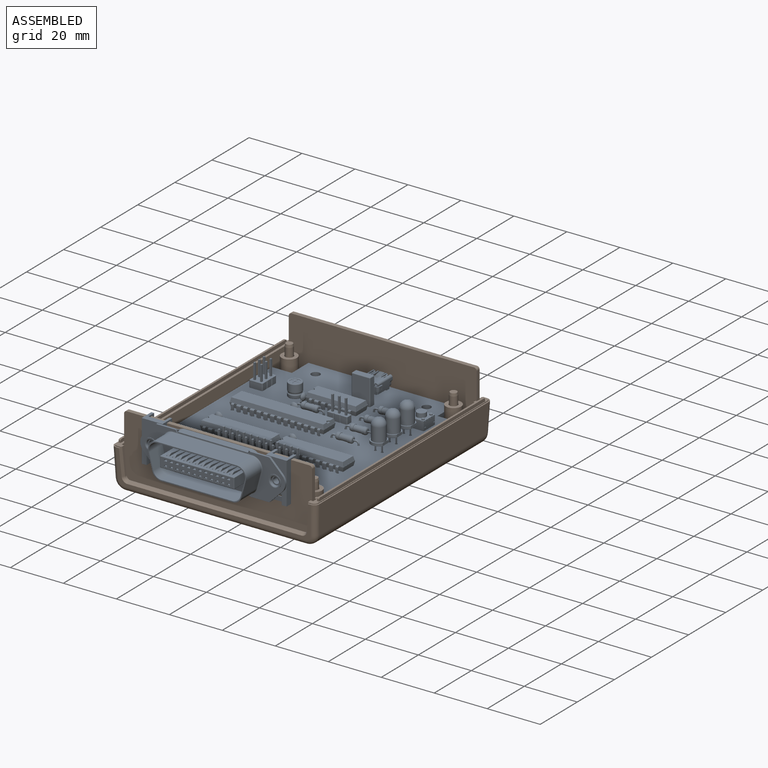
[diagram: assembled view]
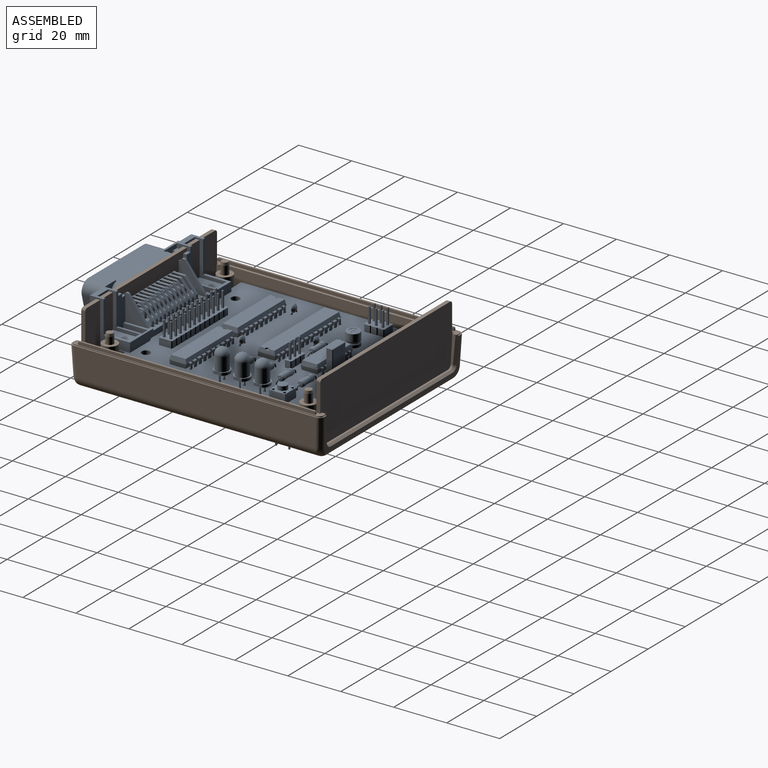
[diagram: assembled view, second angle]
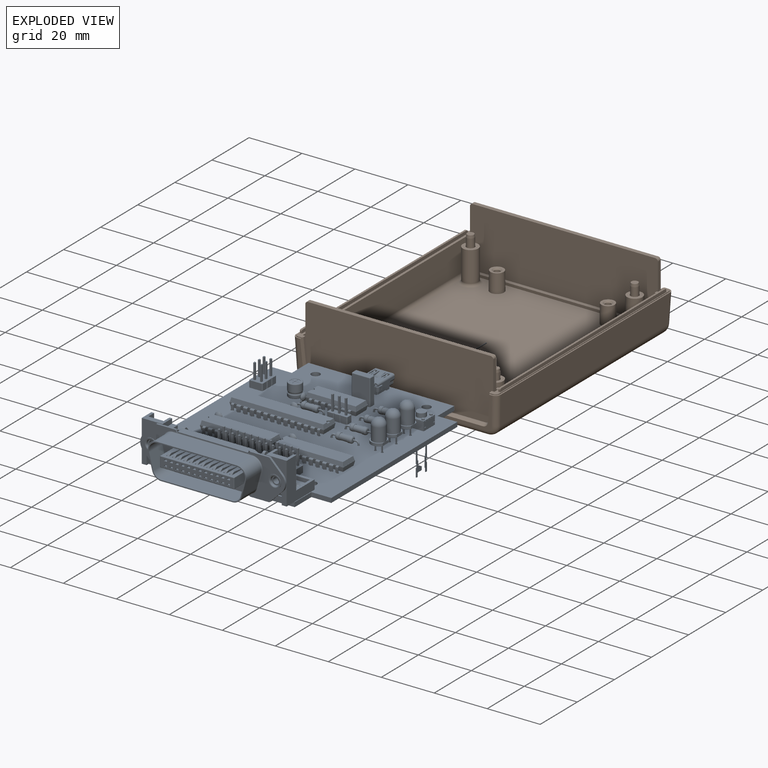
[diagram: exploded view]
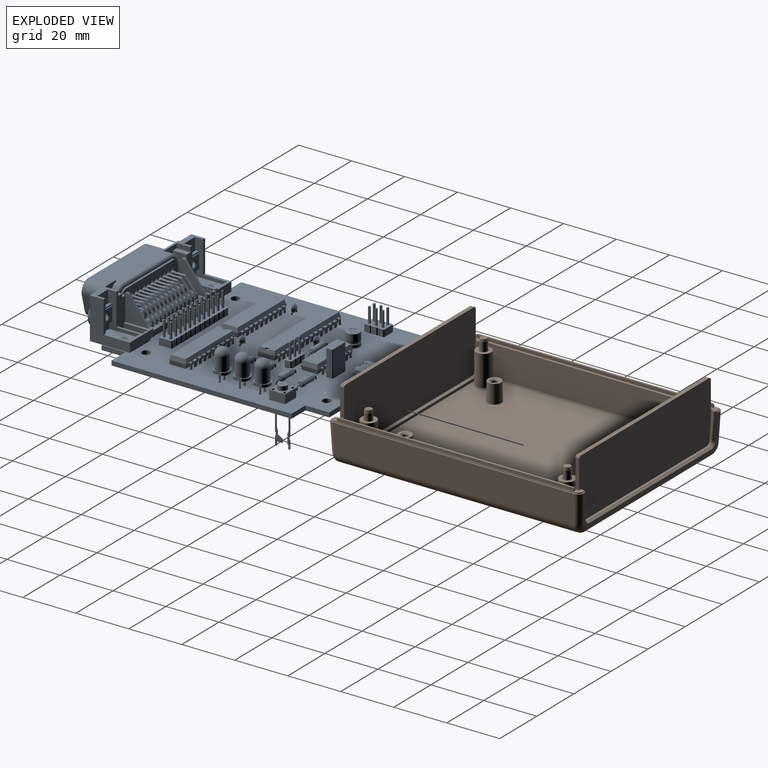
[diagram: exploded view, second angle]
FCSTD DOCUMENT  (FreeCAD 0.19R24267 +99 (Git))
Label: AVR488
License: All rights reserved
LicenseURL: http://en.wikipedia.org/wiki/All_rights_reserved
objects: Part::Feature×24, App::Link×10, App::Part×5, PartDesign::CoordinateSystem×1, Sketcher::SketchObject×1
note: 26 computed .brp shape members not serialized (recipe doc carries the construction recipe); baked Part::Feature solids carry a one-line shape summary decoded from their .brp

FEATURE [Part::Feature] Part__Feature  label="1593BB BOTTOM"
  shape: bbox 77.29 x 95.29 x 16.21 mm, 144 faces (baked)
FEATURE [Part::Feature] Part__Feature001  label="1593BB TOP"
  Placement = pos=(0,0,30) rot=(0,1,0;3.14159rad)
  shape: bbox 77.32 x 95.32 x 15.04 mm, 109 faces (baked)
FEATURE [Part::Feature] Part__Feature002  label="1593BB End Panel"
  Placement = pos=(0,-44.3754,14.5) rot=(-1,0,0;1.5708rad)
  shape: bbox 71 x 1.524 x 24.3 mm, 10 faces (baked)
FEATURE [Part::Feature] Part__Feature003  label="1593BB End Panel001"
  Placement = pos=(0,44.3754,14) rot=(0,0.707107,0.707107;3.14159rad)
  shape: bbox 71 x 1.524 x 24.3 mm, 10 faces (baked)
FEATURE [Part::Feature] Part__Feature005  label="SC549 (screw #4X 3_4' OH)"
  Placement = pos=(-31,-37.5,2.49631) rot=(-1,0,0;1.5708rad)
  shape: bbox 5.525 x 5.525 x 18.81 mm, 28 faces (baked)
FEATURE [Part::Feature] Part__Feature006  label="SC549 (screw #4X 3_4' OH)001"
  Placement = pos=(31,-37.5,1.89631) rot=(-1,0,0;1.5708rad)
  shape: bbox 5.525 x 5.525 x 18.81 mm, 28 faces (baked)
FEATURE [Part::Feature] Part__Feature007  label="SC549 (screw #4X 3_4' OH)002"
  Placement = pos=(31,37.5,2.49631) rot=(-1,0,0;1.5708rad)
  shape: bbox 5.525 x 5.525 x 18.81 mm, 28 faces (baked)
FEATURE [Part::Feature] Part__Feature008  label="SC549 (screw #4X 3_4' OH)003"
  Placement = pos=(-31,37.5,2.49631) rot=(-1,0,0;1.5708rad)
  shape: bbox 5.525 x 5.525 x 18.81 mm, 28 faces (baked)
FEATURE [PartDesign::CoordinateSystem] Local_CS_4d56
  AttacherType = Attacher::AttachEngine3D
FEATURE [Part::Feature] Pcb_4d56
  Placement = pos=(-139.7,106.68,0) rot=(0,0,1;0rad)
  shape: bbox 86 x 70 x 1.69 mm, 206 faces (baked)
FEATURE [Sketcher::SketchObject] PCB_Sketch_4d56
  FullyConstrained = false
  sketch-geometry (12):
    g0: LineSegment StartX=42.8 StartY=29.18 StartZ=0 EndX=42.8 EndY=21.68 EndZ=0
    g1: LineSegment StartX=42.8 StartY=21.68 StartZ=0 EndX=51.8 EndY=21.68 EndZ=0
    g2: LineSegment StartX=51.8 StartY=21.68 StartZ=0 EndX=51.8 EndY=-33.32 EndZ=0
    g3: LineSegment StartX=51.8 StartY=-33.32 StartZ=0 EndX=42.8 EndY=-33.32 EndZ=0
    g4: LineSegment StartX=42.8 StartY=-33.32 StartZ=0 EndX=42.8 EndY=-40.82 EndZ=0
    g5: LineSegment StartX=42.8 StartY=-40.82 StartZ=0 EndX=-25.2 EndY=-40.82 EndZ=0
    g6: LineSegment StartX=-25.2 StartY=-40.82 StartZ=0 EndX=-25.2 EndY=-33.32 EndZ=0
    g7: LineSegment StartX=-25.2 StartY=-33.32 StartZ=0 EndX=-34.2 EndY=-33.32 EndZ=0
    g8: LineSegment StartX=-34.2 StartY=-33.32 StartZ=0 EndX=-34.2 EndY=21.68 EndZ=0
    g9: LineSegment StartX=-34.2 StartY=21.68 StartZ=0 EndX=-25.2 EndY=21.68 EndZ=0
    g10: LineSegment StartX=-25.2 StartY=21.68 StartZ=0 EndX=-25.2 EndY=29.18 EndZ=0
    g11: LineSegment StartX=-25.2 StartY=29.18 StartZ=0 EndX=42.8 EndY=29.18 EndZ=0
  constraints (12):
    c: Coincident(g7,g8)
    c: Coincident(g8,g9)
    c: Coincident(g5,g6)
    c: Coincident(g6,g7)
    c: Coincident(g9,g10)
    c: Coincident(g10,g11)
    c: Coincident(g4,g5)
    c: Coincident(g3,g4)
    c: Coincident(g0,g1)
    c: Coincident(g0,g11)
    c: Coincident(g2,g3)
    c: Coincident(g1,g2)
FEATURE [App::Part] Board_Geoms_4d56
  Group = -> [Local_CS_4d56,Pcb_4d56,PCB_Sketch_4d56]
  Origin = -> Origin
FEATURE [Part::Feature] Shape  label="U1_DIP-14_W7.62mm_07c7e3d0463e"
  Placement = pos=(-8.89,-15.24,0) rot=(0,0,1;3.14159rad)
  shape: bbox 7.874 x 19.05 x 6.98 mm, 250 faces (baked)
FEATURE [Part::Feature] Shape001  label="R3_R_Axial_DIN0207_L63mm_D25mm_P1016mm_Horizontal_f71aacabab9c"
  Placement = pos=(-1.27,3.81,0) rot=(0,0,1;1.5708rad)
  shape: bbox 2.706 x 10.96 x 5.603 mm, 17 faces (baked)
FEATURE [Part::Feature] Shape002  label="U4_DIP-20_W7.62mm_8dba236a9cba"
  Placement = pos=(26.67,-30.48,0) rot=(0,0,1;3.14159rad)
  shape: bbox 7.874 x 26.16 x 6.98 mm, 352 faces (baked)
FEATURE [App::Link] R3_R_Axial_DIN0207_L63mm_D25mm_P1016mm_Horizontal_f71aacabab9c_ln_  label="R2_R_Axial_DIN0207_L63mm_D25mm_P1016mm_Horizontal_949abe8085c3"
  LinkPlacement = pos=(6.35,3.81,0) rot=(0,0,1;1.5708rad)
  LinkedObject = -> Shape001
  Placement = pos=(6.35,3.81,0) rot=(0,0,1;1.5708rad)
FEATURE [Part::Feature] Shape003  label="D2_LED_D5.0mm_e4c8e7621137"
  Placement = pos=(-1.27,22.87,0) rot=(0,0,-1;1.5708rad)
  shape: bbox 5.8 x 5.4 x 14.1 mm, 16 faces (baked)
FEATURE [App::Link] U4_DIP_20_W7_62mm_8dba236a9cba_ln_  label="U3_DIP-20_W7.62mm_1adb39d7efbd"
  LinkPlacement = pos=(26.67,-2.54,0) rot=(0,0,1;3.14159rad)
  LinkedObject = -> Shape002
  Placement = pos=(26.67,-2.54,0) rot=(0,0,1;3.14159rad)
FEATURE [App::Link] D2_LED_D5_0mm_e4c8e7621137_ln_  label="D3_LED_D5.0mm_3ad55a30bb11"
  LinkPlacement = pos=(-8.89,22.87,0) rot=(0,0,-1;1.5708rad)
  LinkedObject = -> Shape003
  Placement = pos=(-8.89,22.87,0) rot=(0,0,-1;1.5708rad)
FEATURE [App::Link] R3_R_Axial_DIN0207_L63mm_D25mm_P1016mm_Horizontal_f71aacabab9c_ln_001  label="R4_R_Axial_DIN0207_L63mm_D25mm_P1016mm_Horizontal_e2ab82dd5313"
  LinkPlacement = pos=(-8.89,3.81,0) rot=(0,0,1;1.5708rad)
  LinkedObject = -> Shape001
  Placement = pos=(-8.89,3.81,0) rot=(0,0,1;1.5708rad)
FEATURE [Part::Feature] Shape004  label="J4_PinHeader_2x12_P254mm_Vertical_2a5a55a7fb98"
  Placement = pos=(36.2,-17.78,0) rot=(0,0,1;3.14159rad)
  shape: bbox 5.08 x 30.48 x 11.54 mm, 508 faces (baked)
FEATURE [Part::Feature] Shape005  label="J3_PinHeader_2x03_P254mm_Vertical_44d44c696a08"
  Placement = pos=(-10.175,-34.285,0) rot=(0,0,-1;1.5708rad)
  shape: bbox 7.62 x 5.08 x 11.54 mm, 130 faces (baked)
FEATURE [Part::Feature] Shape006  label="U2_DIP-28_W7.62mm_c51a3d9690d5"
  shape: bbox 7.874 x 35.56 x 6.98 mm, 488 faces (baked)
FEATURE [Part::Feature] Shape007  label="C4_C_Disc_D30mm_W16mm_P250mm_9aaeda4f0cdd"
  Placement = pos=(-2.54,-15.24,0) rot=(0,0,-1;1.5708rad)
  shape: bbox 1.6 x 3 x 5.1 mm, 12 faces (baked)
FEATURE [App::Link] R3_R_Axial_DIN0207_L63mm_D25mm_P1016mm_Horizontal_f71aacabab9c_ln_002  label="R5_R_Axial_DIN0207_L63mm_D25mm_P1016mm_Horizontal_59d37a754407"
  LinkPlacement = pos=(-16.51,3.81,0) rot=(0,0,1;1.5708rad)
  LinkedObject = -> Shape001
  Placement = pos=(-16.51,3.81,0) rot=(0,0,1;1.5708rad)
FEATURE [Part::Feature] Shape008  label="J2_PinHeader_1x03_P254mm_Vertical_70d33e2d6c7e"
  Placement = pos=(-5.08,1.255,0) rot=(0,0,1;0rad)
  shape: bbox 2.54 x 7.62 x 11.54 mm, 76 faces (baked)
FEATURE [App::Link] R3_R_Axial_DIN0207_L63mm_D25mm_P1016mm_Horizontal_f71aacabab9c_ln_003  label="R1_R_Axial_DIN0207_L63mm_D25mm_P1016mm_Horizontal_c4493e60bf0c"
  LinkPlacement = pos=(-5.715,-17.78,0) rot=(0,0,1;1.5708rad)
  LinkedObject = -> Shape001
  Placement = pos=(-5.715,-17.78,0) rot=(0,0,1;1.5708rad)
FEATURE [Part::Feature] Shape009  label="C5_C_Rect_L70mm_W25mm_P500mm_720b4647ee08"
  Placement = pos=(-19.685,-5.08,0) rot=(0,0,1;1.5708rad)
  shape: bbox 2.5 x 7 x 11.9 mm, 22 faces (baked)
FEATURE [Part::Feature] Shape010  label="C6_CP_Radial_D50mm_P250mm_bbad7ffecfd3"
  Placement = pos=(-12.065,-24.13,0) rot=(0,0,1;1.5708rad)
  shape: bbox 6.515 x 6.128 x 7 mm, 49 faces (baked)
FEATURE [Part::Feature] Shape011  label="J5_112-024-113R001_fb36ff756c3c"
  Placement = pos=(56.434,-5.653,8) rot=(0.707107,0.707107,0;3.14159rad)
  shape: bbox 24.55 x 54.7 x 20.1 mm, 1836 faces (baked)
FEATURE [Part::Feature] Shape012  label="SW1_B3F_602[]_423e57562a1d"
  Placement = pos=(-16.55,21.64,0) rot=(1,0,0;1.5708rad)
  shape: bbox 6 x 6.2 x 21.6 mm, 77 faces (baked)
FEATURE [Part::Feature] Shape013  label="J1_C-2172034-1_a05471a474e2"
  Placement = pos=(-36,-5.918,2) rot=(0.57735,-0.57735,-0.57735;2.0944rad)
  shape: bbox 9.602 x 8.702 x 6.942 mm, 342 faces (baked)
FEATURE [App::Link] D2_LED_D5_0mm_e4c8e7621137_ln_001  label="D1_LED_D5.0mm_1fd93dc95354"
  LinkPlacement = pos=(6.35,22.87,0) rot=(0,0,-1;1.5708rad)
  LinkedObject = -> Shape003
  Placement = pos=(6.35,22.87,0) rot=(0,0,-1;1.5708rad)
FEATURE [App::Link] C4_C_Disc_D30mm_W16mm_P250mm_9aaeda4f0cdd_ln_  label="C2_C_Disc_D30mm_W16mm_P250mm_4bd7ec67bd1b"
  LinkPlacement = pos=(16.51,-2.54,0) rot=(0,0,-1;1.5708rad)
  LinkedObject = -> Shape007
  Placement = pos=(16.51,-2.54,0) rot=(0,0,-1;1.5708rad)
FEATURE [App::Link] C4_C_Disc_D30mm_W16mm_P250mm_9aaeda4f0cdd_ln_001  label="C3_C_Disc_D30mm_W16mm_P250mm_6bbc512422a7"
  LinkPlacement = pos=(16.51,-30.48,0) rot=(0,0,-1;1.5708rad)
  LinkedObject = -> Shape007
  Placement = pos=(16.51,-30.48,0) rot=(0,0,-1;1.5708rad)
FEATURE [App::Link] C4_C_Disc_D30mm_W16mm_P250mm_9aaeda4f0cdd_ln_002  label="C1_C_Disc_D30mm_W16mm_P250mm_4e08486a5acb"
  LinkPlacement = pos=(-8.89,-18.415,0) rot=(0,0,1;3.14159rad)
  LinkedObject = -> Shape007
  Placement = pos=(-8.89,-18.415,0) rot=(0,0,1;3.14159rad)
FEATURE [App::Part] Top_4d56
  Group = -> [Shape,Shape001,Shape002,R3_R_Axial_DIN0207_L63mm_D25mm_P1016mm_Horizontal_f71aacabab9c_ln_,Shape003,U4_DIP_20_W7_62mm_8dba236a9cba_ln_,D2_LED_D5_0mm_e4c8e7621137_ln_,R3_R_Axial_DIN0207_L63mm_D25mm_P1016mm_Horizontal_f71aacabab9c_ln_001,Shape004,Shape005,Shape006,Shape007,R3_R_Axial_DIN0207_L63mm_D25mm_P1016mm_Horizontal_f71aacabab9c_ln_002,Shape008,+10 more]
  Origin = -> Origin003
FEATURE [App::Part] Step_Models_4d56
  Group = -> [Top_4d56]
  Origin = -> Origin002
FEATURE [App::Part] Board_4d56  label="AVR488"
  Group = -> [Board_Geoms_4d56,Step_Models_4d56]
  Origin = -> Origin001
  Placement = pos=(5.8,8.7,11.4) rot=(0,0,1;4.71239rad)
FEATURE [Part::Feature] Part__Feature004  label="1593BB PCB"
  Placement = pos=(6.5e-14,-1.1e-13,18.2) rot=(0,1,0;3.14159rad)
  shape: bbox 70 x 86 x 1.5 mm, 18 faces (baked)
FEATURE [App::Part] _593BB  label="1593BB"
  Group = -> [Part__Feature,Part__Feature001,Part__Feature002,Part__Feature003,Part__Feature004,Part__Feature005,Part__Feature006,Part__Feature007,Part__Feature008]
  Origin = -> Origin004
